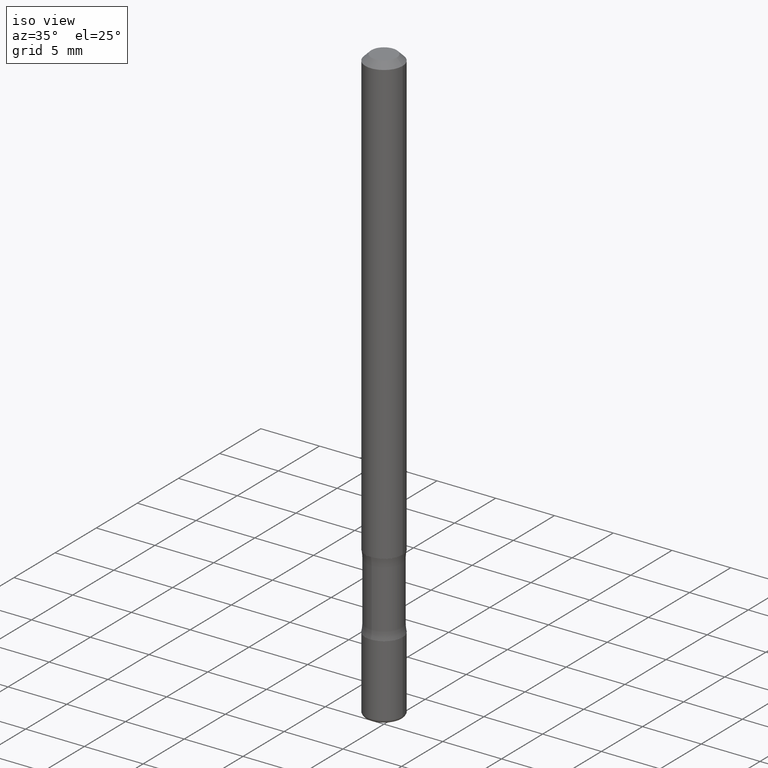
[diagram: clean part render]
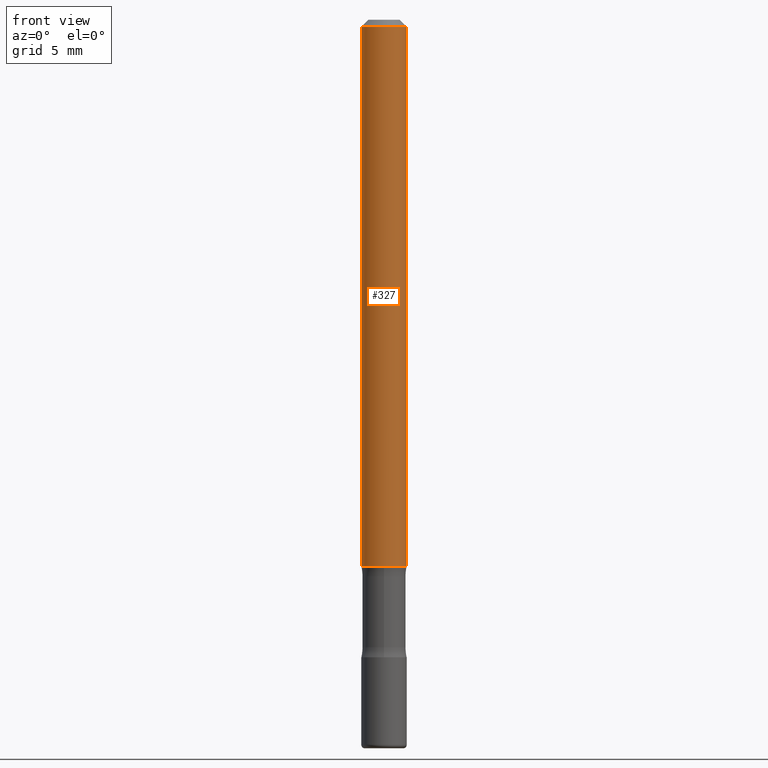
[diagram: tour spotlight — one face highlighted and labeled with its STEP entity id]
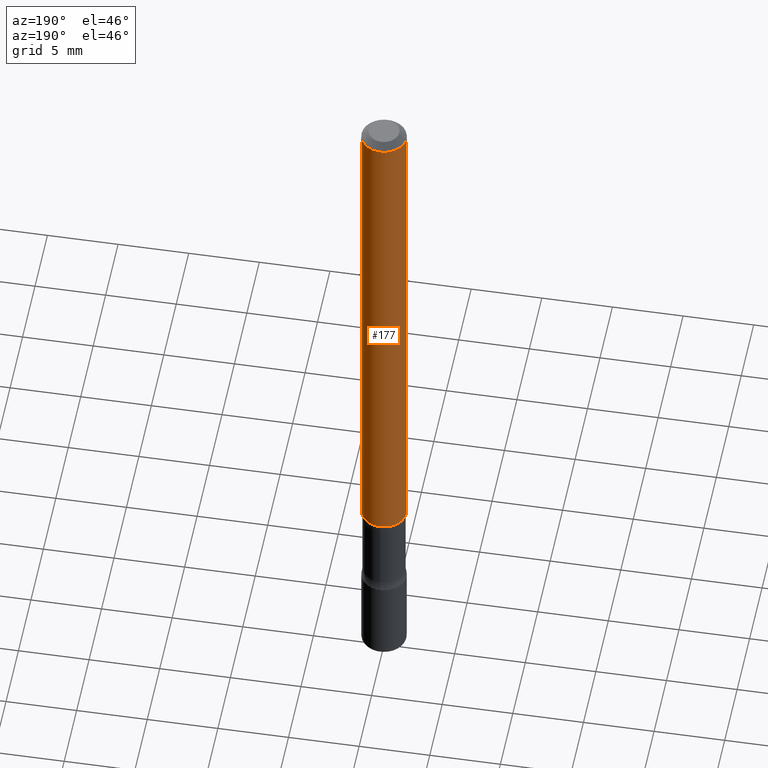
[diagram: tour spotlight — one face highlighted and labeled with its STEP entity id]
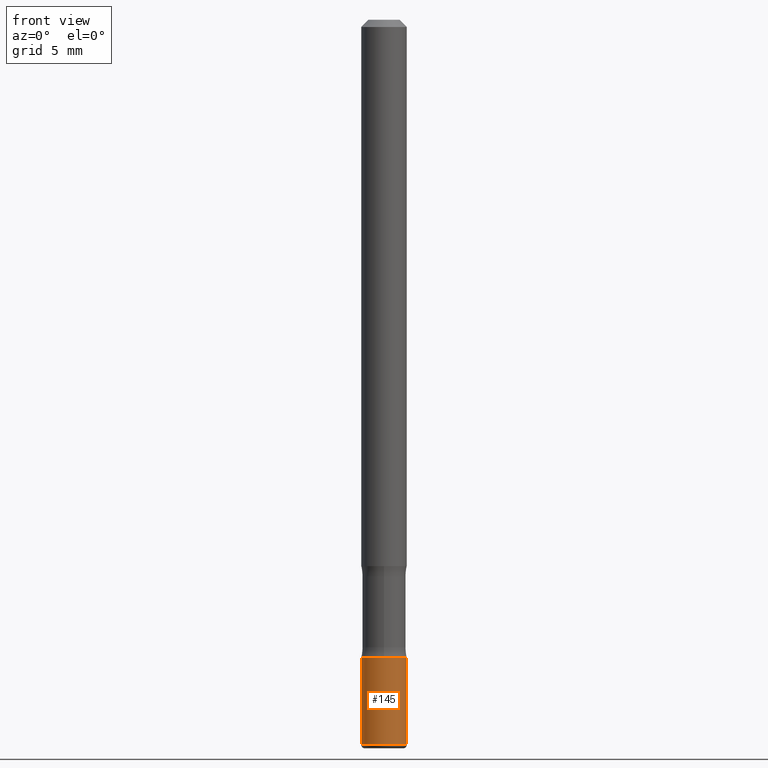
[diagram: tour spotlight — one face highlighted and labeled with its STEP entity id]
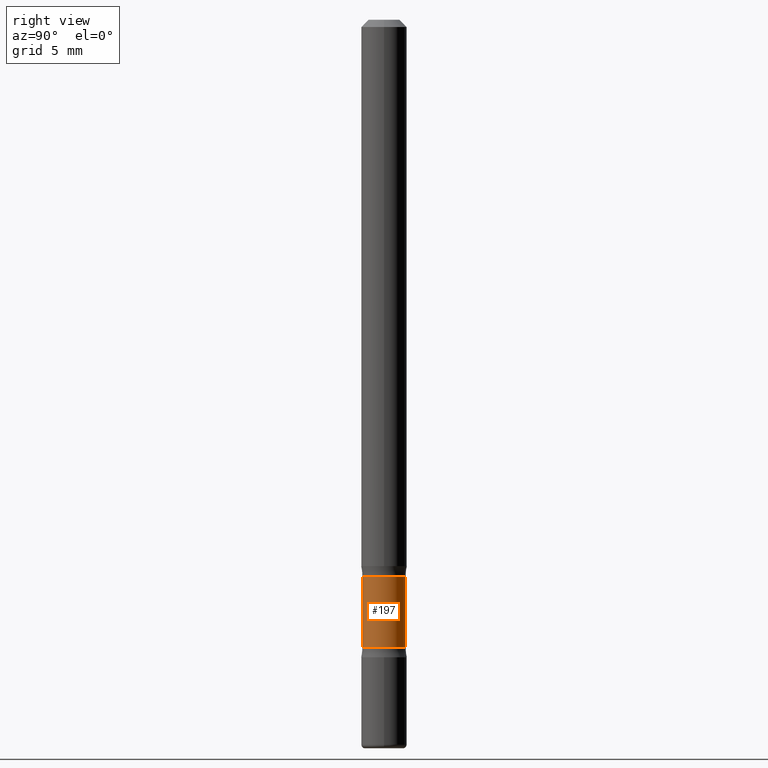
[diagram: tour spotlight — one face highlighted and labeled with its STEP entity id]
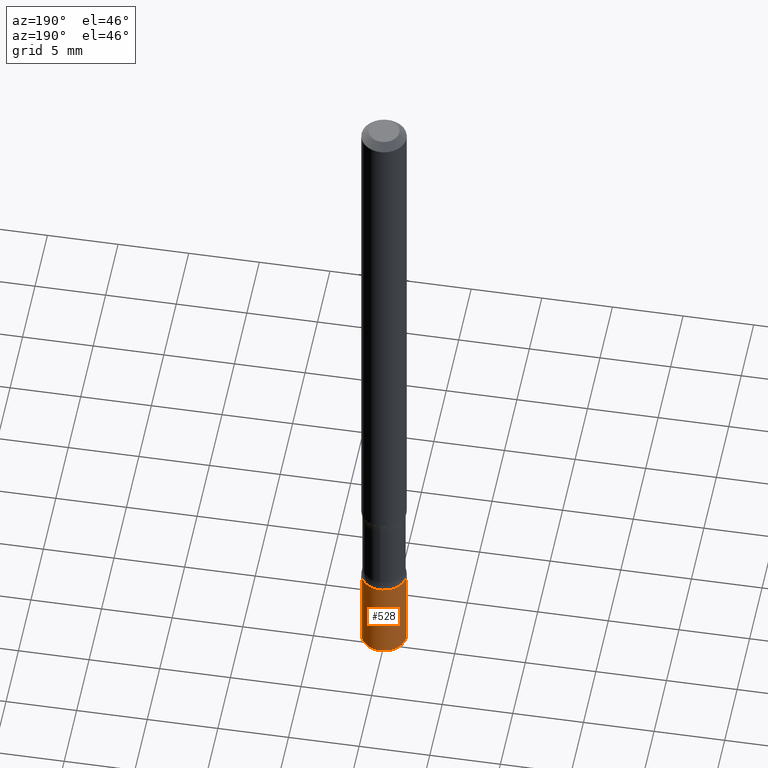
[diagram: tour spotlight — one face highlighted and labeled with its STEP entity id]
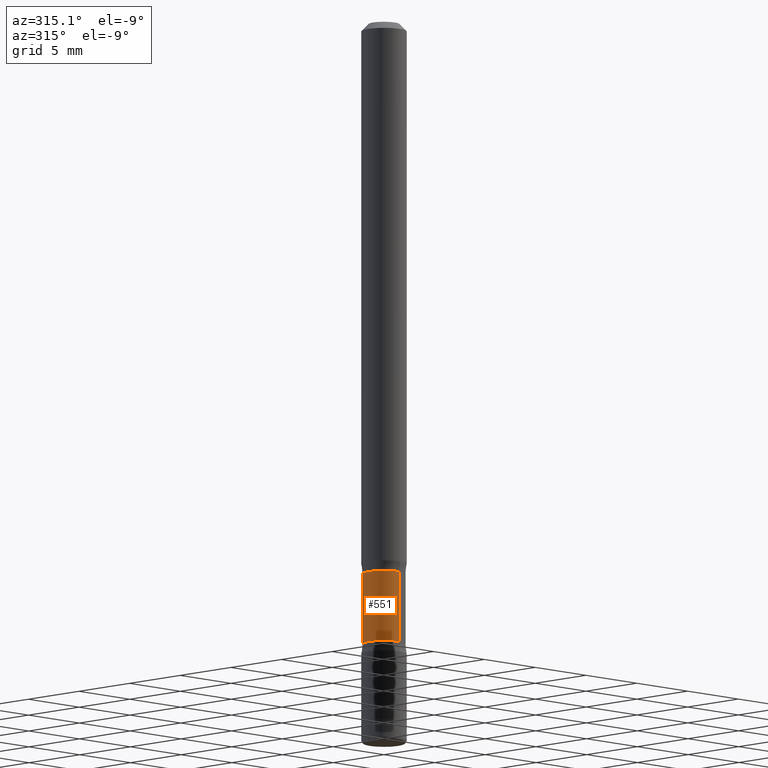
[diagram: tour spotlight — one face highlighted and labeled with its STEP entity id]
A machine part: a face-by-face anatomy tour. The part has 20 B-rep faces; the first image is the clean iso view, then the 6 largest visible faces are spotlighted one at a time (largest first), each with its STEP entity span.

Face 1 — front view, entity #327. In plain terms, the highlighted cylindrical surface (edge-blend (fillet) strip) has radius 1.5875 mm, axis along (-0, 0, 1).
Definition (entity closure, byte-faithful):
#3 = ORIENTED_EDGE ( 'NONE', *, *, #207, .F. ) ;
#22 = ORIENTED_EDGE ( 'NONE', *, *, #473, .T. ) ;
#26 = CIRCLE ( 'NONE', #239, 0.06250000000000056899 ) ;
#32 = DIRECTION ( 'NONE',  ( 1.000000000000000000, -6.982962677686265922E-15, 4.876176775795935793E-29 ) ) ;
#33 = VERTEX_POINT ( 'NONE', #154 ) ;
#47 = DIRECTION ( 'NONE',  ( 1.000000000000000000, -6.982962677686270655E-15, 0.000000000000000000 ) ) ;
#56 = AXIS2_PLACEMENT_3D ( 'NONE', #525, #479, #32 ) ;
#59 = LINE ( 'NONE', #269, #149 ) ;
#77 = CARTESIAN_POINT ( 'NONE',  ( -0.06250000000000056899, 3.666055405785322169E-16, -0.02000000000000013572 ) ) ;
#90 = CARTESIAN_POINT ( 'NONE',  ( -0.06250000000000073552, 4.440892098500678424E-16, -3.074334431409351847E-30 ) ) ;
#126 = CARTESIAN_POINT ( 'NONE',  ( 0.06250000000000090206, -5.673657175620112213E-15, -1.499999999999998668 ) ) ;
#127 = DIRECTION ( 'NONE',  ( -2.445468806185136597E-29, 3.491481338843145583E-15, 1.000000000000000000 ) ) ;
#128 = VECTOR ( 'NONE', #445, 39.37007874015748143 ) ;
#139 = DIRECTION ( 'NONE',  ( 1.000000000000000000, -6.982962677686265922E-15, 0.000000000000000000 ) ) ;
#148 = FACE_OUTER_BOUND ( 'NONE', #549, .T. ) ;
#149 = VECTOR ( 'NONE', #406, 39.37007874015748143 ) ;
#154 = CARTESIAN_POINT ( 'NONE',  ( -0.06250000000000090206, -2.209436607670712344E-15, -1.499999999999998668 ) ) ;
#179 = CIRCLE ( 'NONE', #337, 0.06250000000000090206 ) ;
#183 = EDGE_CURVE ( 'NONE', #33, #245, #179, .T. ) ;
#195 = VERTEX_POINT ( 'NONE', #200 ) ;
#200 = CARTESIAN_POINT ( 'NONE',  ( 0.06250000000000056899, -4.986107516375879651E-16, -0.02000000000000013572 ) ) ;
#207 = EDGE_CURVE ( 'NONE', #33, #323, #355, .T. ) ;
#219 = DIRECTION ( 'NONE',  ( -2.445468806185136597E-29, 3.491481338843145583E-15, 1.000000000000000000 ) ) ;
#239 = AXIS2_PLACEMENT_3D ( 'NONE', #313, #219, #139 ) ;
#244 = EDGE_CURVE ( 'NONE', #323, #195, #26, .T. ) ;
#245 = VERTEX_POINT ( 'NONE', #126 ) ;
#269 = CARTESIAN_POINT ( 'NONE',  ( 0.06250000000000073552, -4.364351673553967477E-16, 3.047610484872495604E-30 ) ) ;
#313 = CARTESIAN_POINT ( 'NONE',  ( 4.890937612370306439E-31, -6.982962677686338448E-17, -0.02000000000000013572 ) ) ;
#323 = VERTEX_POINT ( 'NONE', #77 ) ;
#327 = ADVANCED_FACE ( 'NONE', ( #148 ), #519, .T. ) ;
#337 = AXIS2_PLACEMENT_3D ( 'NONE', #386, #127, #47 ) ;
#355 = LINE ( 'NONE', #90, #128 ) ;
#386 = CARTESIAN_POINT ( 'NONE',  ( 3.668203209277701532E-29, -5.237222008264713444E-15, -1.499999999999998668 ) ) ;
#406 = DIRECTION ( 'NONE',  ( -2.445468806185136877E-29, 3.491481338843145188E-15, 1.000000000000000000 ) ) ;
#445 = DIRECTION ( 'NONE',  ( -2.445468806185136877E-29, 3.491481338843145188E-15, 1.000000000000000000 ) ) ;
#467 = ORIENTED_EDGE ( 'NONE', *, *, #244, .F. ) ;
#473 = EDGE_CURVE ( 'NONE', #245, #195, #59, .T. ) ;
#479 = DIRECTION ( 'NONE',  ( -2.445468806185136597E-29, 3.491481338843145583E-15, 1.000000000000000000 ) ) ;
#486 = ORIENTED_EDGE ( 'NONE', *, *, #183, .T. ) ;
#519 = CYLINDRICAL_SURFACE ( 'NONE', #56, 0.06250000000000073552 ) ;
#525 = CARTESIAN_POINT ( 'NONE',  ( 0.000000000000000000, 0.000000000000000000, 0.000000000000000000 ) ) ;
#549 = EDGE_LOOP ( 'NONE', ( #3, #486, #22, #467 ) ) ;

Face 2 — auxiliary view, entity #177. In plain terms, the highlighted cylindrical surface (edge-blend (fillet) strip) has radius 1.5875 mm, axis along (-0, 0, 1).
Definition (entity closure, byte-faithful):
#33 = VERTEX_POINT ( 'NONE', #154 ) ;
#42 = CARTESIAN_POINT ( 'NONE',  ( 3.668203209277701532E-29, -5.237222008264713444E-15, -1.499999999999998668 ) ) ;
#59 = LINE ( 'NONE', #269, #149 ) ;
#77 = CARTESIAN_POINT ( 'NONE',  ( -0.06250000000000056899, 3.666055405785322169E-16, -0.02000000000000013572 ) ) ;
#90 = CARTESIAN_POINT ( 'NONE',  ( -0.06250000000000073552, 4.440892098500678424E-16, -3.074334431409351847E-30 ) ) ;
#102 = EDGE_CURVE ( 'NONE', #195, #323, #399, .T. ) ;
#122 = AXIS2_PLACEMENT_3D ( 'NONE', #283, #291, #511 ) ;
#126 = CARTESIAN_POINT ( 'NONE',  ( 0.06250000000000090206, -5.673657175620112213E-15, -1.499999999999998668 ) ) ;
#128 = VECTOR ( 'NONE', #445, 39.37007874015748143 ) ;
#138 = EDGE_CURVE ( 'NONE', #245, #33, #204, .T. ) ;
#144 = FACE_OUTER_BOUND ( 'NONE', #546, .T. ) ;
#149 = VECTOR ( 'NONE', #406, 39.37007874015748143 ) ;
#154 = CARTESIAN_POINT ( 'NONE',  ( -0.06250000000000090206, -2.209436607670712344E-15, -1.499999999999998668 ) ) ;
#158 = CYLINDRICAL_SURFACE ( 'NONE', #122, 0.06250000000000073552 ) ;
#177 = ADVANCED_FACE ( 'NONE', ( #144 ), #158, .T. ) ;
#195 = VERTEX_POINT ( 'NONE', #200 ) ;
#199 = ORIENTED_EDGE ( 'NONE', *, *, #473, .F. ) ;
#200 = CARTESIAN_POINT ( 'NONE',  ( 0.06250000000000056899, -4.986107516375879651E-16, -0.02000000000000013572 ) ) ;
#204 = CIRCLE ( 'NONE', #263, 0.06250000000000090206 ) ;
#207 = EDGE_CURVE ( 'NONE', #33, #323, #355, .T. ) ;
#209 = DIRECTION ( 'NONE',  ( -2.445468806185136597E-29, 3.491481338843145583E-15, 1.000000000000000000 ) ) ;
#245 = VERTEX_POINT ( 'NONE', #126 ) ;
#263 = AXIS2_PLACEMENT_3D ( 'NONE', #42, #209, #338 ) ;
#269 = CARTESIAN_POINT ( 'NONE',  ( 0.06250000000000073552, -4.364351673553967477E-16, 3.047610484872495604E-30 ) ) ;
#283 = CARTESIAN_POINT ( 'NONE',  ( 0.000000000000000000, 0.000000000000000000, 0.000000000000000000 ) ) ;
#291 = DIRECTION ( 'NONE',  ( -2.445468806185136597E-29, 3.491481338843145583E-15, 1.000000000000000000 ) ) ;
#299 = DIRECTION ( 'NONE',  ( -2.445468806185136597E-29, 3.491481338843145583E-15, 1.000000000000000000 ) ) ;
#301 = CARTESIAN_POINT ( 'NONE',  ( 4.890937612370306439E-31, -6.982962677686338448E-17, -0.02000000000000013572 ) ) ;
#323 = VERTEX_POINT ( 'NONE', #77 ) ;
#338 = DIRECTION ( 'NONE',  ( 1.000000000000000000, -6.982962677686270655E-15, 0.000000000000000000 ) ) ;
#355 = LINE ( 'NONE', #90, #128 ) ;
#399 = CIRCLE ( 'NONE', #531, 0.06250000000000056899 ) ;
#406 = DIRECTION ( 'NONE',  ( -2.445468806185136877E-29, 3.491481338843145188E-15, 1.000000000000000000 ) ) ;
#420 = ORIENTED_EDGE ( 'NONE', *, *, #102, .F. ) ;
#445 = DIRECTION ( 'NONE',  ( -2.445468806185136877E-29, 3.491481338843145188E-15, 1.000000000000000000 ) ) ;
#456 = DIRECTION ( 'NONE',  ( 1.000000000000000000, -6.982962677686265922E-15, 0.000000000000000000 ) ) ;
#466 = ORIENTED_EDGE ( 'NONE', *, *, #207, .T. ) ;
#473 = EDGE_CURVE ( 'NONE', #245, #195, #59, .T. ) ;
#507 = ORIENTED_EDGE ( 'NONE', *, *, #138, .T. ) ;
#511 = DIRECTION ( 'NONE',  ( 1.000000000000000000, -6.982962677686265922E-15, 4.876176775795935793E-29 ) ) ;
#531 = AXIS2_PLACEMENT_3D ( 'NONE', #301, #299, #456 ) ;
#546 = EDGE_LOOP ( 'NONE', ( #507, #466, #420, #199 ) ) ;

Face 3 — front view, entity #145. In plain terms, the highlighted cylindrical surface (edge-blend (fillet) strip) has radius 1.5875 mm, axis along (-0, 0, 1).
Definition (entity closure, byte-faithful):
#37 = AXIS2_PLACEMENT_3D ( 'NONE', #117, #529, #533 ) ;
#66 = EDGE_CURVE ( 'NONE', #418, #95, #99, .T. ) ;
#70 = CYLINDRICAL_SURFACE ( 'NONE', #409, 0.06250000000000076328 ) ;
#74 = CIRCLE ( 'NONE', #37, 0.06250000000000090206 ) ;
#95 = VERTEX_POINT ( 'NONE', #217 ) ;
#99 = CIRCLE ( 'NONE', #422, 0.06250000000000062450 ) ;
#117 = CARTESIAN_POINT ( 'NONE',  ( 4.866482924308417164E-29, -6.948047864297853205E-15, -1.989999999999998215 ) ) ;
#120 = ORIENTED_EDGE ( 'NONE', *, *, #66, .F. ) ;
#145 = ADVANCED_FACE ( 'NONE', ( #390 ), #70, .T. ) ;
#171 = DIRECTION ( 'NONE',  ( 1.000000000000000000, -6.982962677686266711E-15, 4.876176775795936353E-29 ) ) ;
#191 = DIRECTION ( 'NONE',  ( -2.445468806185136877E-29, 3.491481338843145188E-15, 1.000000000000000000 ) ) ;
#217 = CARTESIAN_POINT ( 'NONE',  ( 0.06250000000000062450, -6.546527510330897918E-15, -1.749999999999999112 ) ) ;
#241 = EDGE_LOOP ( 'NONE', ( #261, #375, #413, #120 ) ) ;
#246 = CARTESIAN_POINT ( 'NONE',  ( 0.06250000000000111022, -7.384483031653253552E-15, -1.989999999999998215 ) ) ;
#257 = DIRECTION ( 'NONE',  ( 1.000000000000000000, -6.982962677686271444E-15, 0.000000000000000000 ) ) ;
#261 = ORIENTED_EDGE ( 'NONE', *, *, #433, .F. ) ;
#277 = VERTEX_POINT ( 'NONE', #304 ) ;
#304 = CARTESIAN_POINT ( 'NONE',  ( -0.06250000000000111022, -6.503958654447783489E-15, -1.989999999999998215 ) ) ;
#320 = VERTEX_POINT ( 'NONE', #246 ) ;
#321 = CARTESIAN_POINT ( 'NONE',  ( -0.06250000000000076328, 4.440892098500680396E-16, -3.074334431409353598E-30 ) ) ;
#322 = VECTOR ( 'NONE', #191, 39.37007874015748143 ) ;
#330 = LINE ( 'NONE', #321, #351 ) ;
#347 = EDGE_CURVE ( 'NONE', #320, #95, #412, .T. ) ;
#351 = VECTOR ( 'NONE', #407, 39.37007874015748143 ) ;
#357 = DIRECTION ( 'NONE',  ( -2.445468806185136597E-29, 3.491481338843145583E-15, 1.000000000000000000 ) ) ;
#358 = EDGE_CURVE ( 'NONE', #277, #320, #74, .T. ) ;
#375 = ORIENTED_EDGE ( 'NONE', *, *, #358, .T. ) ;
#390 = FACE_OUTER_BOUND ( 'NONE', #241, .T. ) ;
#407 = DIRECTION ( 'NONE',  ( -2.445468806185136877E-29, 3.491481338843145188E-15, 1.000000000000000000 ) ) ;
#409 = AXIS2_PLACEMENT_3D ( 'NONE', #560, #499, #171 ) ;
#412 = LINE ( 'NONE', #417, #322 ) ;
#413 = ORIENTED_EDGE ( 'NONE', *, *, #347, .T. ) ;
#417 = CARTESIAN_POINT ( 'NONE',  ( 0.06250000000000076328, -4.364351673553969942E-16, 3.047610484872497355E-30 ) ) ;
#418 = VERTEX_POINT ( 'NONE', #437 ) ;
#422 = AXIS2_PLACEMENT_3D ( 'NONE', #470, #357, #257 ) ;
#433 = EDGE_CURVE ( 'NONE', #277, #418, #330, .T. ) ;
#437 = CARTESIAN_POINT ( 'NONE',  ( -0.06250000000000062450, -6.084980893786609222E-15, -1.749999999999999112 ) ) ;
#470 = CARTESIAN_POINT ( 'NONE',  ( 4.279570410823987363E-29, -6.110092342975501516E-15, -1.749999999999999112 ) ) ;
#499 = DIRECTION ( 'NONE',  ( -2.445468806185136597E-29, 3.491481338843145583E-15, 1.000000000000000000 ) ) ;
#529 = DIRECTION ( 'NONE',  ( -2.445468806185136597E-29, 3.491481338843145583E-15, 1.000000000000000000 ) ) ;
#533 = DIRECTION ( 'NONE',  ( 1.000000000000000000, -6.982962677686270655E-15, 0.000000000000000000 ) ) ;
#560 = CARTESIAN_POINT ( 'NONE',  ( 0.000000000000000000, 0.000000000000000000, 0.000000000000000000 ) ) ;

Face 4 — right view, entity #197. In plain terms, the highlighted cylindrical surface (edge-blend (fillet) strip) has radius 1.5081 mm, axis along (0, -0, -1).
Definition (entity closure, byte-faithful):
#5 = LINE ( 'NONE', #318, #350 ) ;
#16 = EDGE_LOOP ( 'NONE', ( #504, #509, #100, #167 ) ) ;
#69 = DIRECTION ( 'NONE',  ( 6.982962677686266711E-15, 1.000000000000000000, -4.601007147224070964E-15 ) ) ;
#78 = CARTESIAN_POINT ( 'NONE',  ( 4.479839360347238409E-29, -7.571678772842681008E-15, -1.999999999999998446 ) ) ;
#98 = DIRECTION ( 'NONE',  ( 8.010757980930134339E-30, -5.846345719468729014E-15, -1.000000000000000000 ) ) ;
#100 = ORIENTED_EDGE ( 'NONE', *, *, #210, .F. ) ;
#115 = DIRECTION ( 'NONE',  ( 8.010757980930134339E-30, -5.846345719468729014E-15, -1.000000000000000000 ) ) ;
#132 = CARTESIAN_POINT ( 'NONE',  ( 4.257320043835055680E-29, -5.947706538645865427E-15, -1.722224392445885321 ) ) ;
#141 = CARTESIAN_POINT ( 'NONE',  ( 4.146134089876645858E-16, 0.05937499999999210076, -1.999999999999998668 ) ) ;
#146 = CARTESIAN_POINT ( 'NONE',  ( -4.180615967391589820E-16, -0.05937500000000418832, -1.527775607554111792 ) ) ;
#147 = AXIS2_PLACEMENT_3D ( 'NONE', #78, #311, #520 ) ;
#166 = DIRECTION ( 'NONE',  ( 8.010757980930134339E-30, -5.846345719468729014E-15, -1.000000000000000000 ) ) ;
#167 = ORIENTED_EDGE ( 'NONE', *, *, #431, .F. ) ;
#168 = AXIS2_PLACEMENT_3D ( 'NONE', #498, #115, #69 ) ;
#178 = DIRECTION ( 'NONE',  ( 8.010757980930134339E-30, -5.846345719468729014E-15, -1.000000000000000000 ) ) ;
#185 = AXIS2_PLACEMENT_3D ( 'NONE', #132, #166, #441 ) ;
#197 = ADVANCED_FACE ( 'NONE', ( #475 ), #360, .T. ) ;
#205 = VECTOR ( 'NONE', #98, 39.37007874015748143 ) ;
#210 = EDGE_CURVE ( 'NONE', #515, #539, #483, .T. ) ;
#260 = LINE ( 'NONE', #141, #205 ) ;
#295 = VERTEX_POINT ( 'NONE', #146 ) ;
#300 = EDGE_CURVE ( 'NONE', #295, #539, #5, .T. ) ;
#309 = VERTEX_POINT ( 'NONE', #478 ) ;
#311 = DIRECTION ( 'NONE',  ( 8.010757980930134339E-30, -5.846345719468729014E-15, -1.000000000000000000 ) ) ;
#318 = CARTESIAN_POINT ( 'NONE',  ( -4.073420686176375718E-16, -0.05937500000000724837, -1.999999999999998002 ) ) ;
#350 = VECTOR ( 'NONE', #178, 39.37007874015748143 ) ;
#360 = CYLINDRICAL_SURFACE ( 'NONE', #147, 0.05937499999999967110 ) ;
#361 = CIRCLE ( 'NONE', #168, 0.05937499999999937272 ) ;
#373 = CARTESIAN_POINT ( 'NONE',  ( 4.146134089876643393E-16, 0.05937499999999401590, -1.722224392445885544 ) ) ;
#382 = EDGE_CURVE ( 'NONE', #309, #295, #361, .T. ) ;
#431 = EDGE_CURVE ( 'NONE', #309, #515, #260, .T. ) ;
#441 = DIRECTION ( 'NONE',  ( 6.982962677686265133E-15, 1.000000000000000000, -4.601007147224025211E-15 ) ) ;
#475 = FACE_OUTER_BOUND ( 'NONE', #16, .T. ) ;
#478 = CARTESIAN_POINT ( 'NONE',  ( 4.146134089876587187E-16, 0.05937499999999455713, -1.527775607554112458 ) ) ;
#483 = CIRCLE ( 'NONE', #185, 0.05937499999999996253 ) ;
#495 = CARTESIAN_POINT ( 'NONE',  ( -4.180615967391622360E-16, -0.05937500000000592304, -1.722224392445884877 ) ) ;
#498 = CARTESIAN_POINT ( 'NONE',  ( 4.101551828289662394E-29, -4.810891717437951800E-15, -1.527775607554112014 ) ) ;
#504 = ORIENTED_EDGE ( 'NONE', *, *, #382, .T. ) ;
#509 = ORIENTED_EDGE ( 'NONE', *, *, #300, .T. ) ;
#515 = VERTEX_POINT ( 'NONE', #373 ) ;
#520 = DIRECTION ( 'NONE',  ( 6.982962677686266711E-15, 1.000000000000000000, -4.601007147224048087E-15 ) ) ;
#539 = VERTEX_POINT ( 'NONE', #495 ) ;

Face 5 — auxiliary view, entity #528. In plain terms, the highlighted cylindrical surface (edge-blend (fillet) strip) has radius 1.5875 mm, axis along (-0, 0, 1).
Definition (entity closure, byte-faithful):
#2 = AXIS2_PLACEMENT_3D ( 'NONE', #503, #286, #391 ) ;
#41 = DIRECTION ( 'NONE',  ( -2.445468806185136597E-29, 3.491481338843145583E-15, 1.000000000000000000 ) ) ;
#80 = ORIENTED_EDGE ( 'NONE', *, *, #433, .T. ) ;
#95 = VERTEX_POINT ( 'NONE', #217 ) ;
#107 = DIRECTION ( 'NONE',  ( -2.445468806185136597E-29, 3.491481338843145583E-15, 1.000000000000000000 ) ) ;
#186 = CARTESIAN_POINT ( 'NONE',  ( 4.866482924308417164E-29, -6.948047864297853205E-15, -1.989999999999998215 ) ) ;
#191 = DIRECTION ( 'NONE',  ( -2.445468806185136877E-29, 3.491481338843145188E-15, 1.000000000000000000 ) ) ;
#217 = CARTESIAN_POINT ( 'NONE',  ( 0.06250000000000062450, -6.546527510330897918E-15, -1.749999999999999112 ) ) ;
#232 = FACE_OUTER_BOUND ( 'NONE', #372, .T. ) ;
#246 = CARTESIAN_POINT ( 'NONE',  ( 0.06250000000000111022, -7.384483031653253552E-15, -1.989999999999998215 ) ) ;
#271 = DIRECTION ( 'NONE',  ( 1.000000000000000000, -6.982962677686266711E-15, 4.876176775795936353E-29 ) ) ;
#277 = VERTEX_POINT ( 'NONE', #304 ) ;
#285 = ORIENTED_EDGE ( 'NONE', *, *, #336, .T. ) ;
#286 = DIRECTION ( 'NONE',  ( -2.445468806185136597E-29, 3.491481338843145583E-15, 1.000000000000000000 ) ) ;
#304 = CARTESIAN_POINT ( 'NONE',  ( -0.06250000000000111022, -6.503958654447783489E-15, -1.989999999999998215 ) ) ;
#317 = ORIENTED_EDGE ( 'NONE', *, *, #347, .F. ) ;
#320 = VERTEX_POINT ( 'NONE', #246 ) ;
#321 = CARTESIAN_POINT ( 'NONE',  ( -0.06250000000000076328, 4.440892098500680396E-16, -3.074334431409353598E-30 ) ) ;
#322 = VECTOR ( 'NONE', #191, 39.37007874015748143 ) ;
#330 = LINE ( 'NONE', #321, #351 ) ;
#336 = EDGE_CURVE ( 'NONE', #320, #277, #512, .T. ) ;
#347 = EDGE_CURVE ( 'NONE', #320, #95, #412, .T. ) ;
#351 = VECTOR ( 'NONE', #407, 39.37007874015748143 ) ;
#370 = CIRCLE ( 'NONE', #2, 0.06250000000000062450 ) ;
#372 = EDGE_LOOP ( 'NONE', ( #285, #80, #496, #317 ) ) ;
#379 = CYLINDRICAL_SURFACE ( 'NONE', #462, 0.06250000000000076328 ) ;
#391 = DIRECTION ( 'NONE',  ( 1.000000000000000000, -6.982962677686271444E-15, 0.000000000000000000 ) ) ;
#407 = DIRECTION ( 'NONE',  ( -2.445468806185136877E-29, 3.491481338843145188E-15, 1.000000000000000000 ) ) ;
#412 = LINE ( 'NONE', #417, #322 ) ;
#417 = CARTESIAN_POINT ( 'NONE',  ( 0.06250000000000076328, -4.364351673553969942E-16, 3.047610484872497355E-30 ) ) ;
#418 = VERTEX_POINT ( 'NONE', #437 ) ;
#433 = EDGE_CURVE ( 'NONE', #277, #418, #330, .T. ) ;
#437 = CARTESIAN_POINT ( 'NONE',  ( -0.06250000000000062450, -6.084980893786609222E-15, -1.749999999999999112 ) ) ;
#459 = EDGE_CURVE ( 'NONE', #95, #418, #370, .T. ) ;
#460 = AXIS2_PLACEMENT_3D ( 'NONE', #186, #41, #559 ) ;
#462 = AXIS2_PLACEMENT_3D ( 'NONE', #490, #107, #271 ) ;
#490 = CARTESIAN_POINT ( 'NONE',  ( 0.000000000000000000, 0.000000000000000000, 0.000000000000000000 ) ) ;
#496 = ORIENTED_EDGE ( 'NONE', *, *, #459, .F. ) ;
#503 = CARTESIAN_POINT ( 'NONE',  ( 4.279570410823987363E-29, -6.110092342975501516E-15, -1.749999999999999112 ) ) ;
#512 = CIRCLE ( 'NONE', #460, 0.06250000000000090206 ) ;
#528 = ADVANCED_FACE ( 'NONE', ( #232 ), #379, .T. ) ;
#559 = DIRECTION ( 'NONE',  ( 1.000000000000000000, -6.982962677686270655E-15, 0.000000000000000000 ) ) ;

Face 6 — auxiliary view, entity #551. In plain terms, the highlighted cylindrical surface (edge-blend (fillet) strip) has radius 1.5081 mm, axis along (0, -0, -1).
Definition (entity closure, byte-faithful):
#5 = LINE ( 'NONE', #318, #350 ) ;
#9 = AXIS2_PLACEMENT_3D ( 'NONE', #404, #491, #235 ) ;
#19 = ORIENTED_EDGE ( 'NONE', *, *, #431, .T. ) ;
#23 = CYLINDRICAL_SURFACE ( 'NONE', #254, 0.05937499999999967110 ) ;
#68 = FACE_OUTER_BOUND ( 'NONE', #384, .T. ) ;
#93 = CARTESIAN_POINT ( 'NONE',  ( 4.101551828289662394E-29, -4.810891717437951800E-15, -1.527775607554112014 ) ) ;
#98 = DIRECTION ( 'NONE',  ( 8.010757980930134339E-30, -5.846345719468729014E-15, -1.000000000000000000 ) ) ;
#106 = ORIENTED_EDGE ( 'NONE', *, *, #446, .F. ) ;
#141 = CARTESIAN_POINT ( 'NONE',  ( 4.146134089876645858E-16, 0.05937499999999210076, -1.999999999999998668 ) ) ;
#146 = CARTESIAN_POINT ( 'NONE',  ( -4.180615967391589820E-16, -0.05937500000000418832, -1.527775607554111792 ) ) ;
#178 = DIRECTION ( 'NONE',  ( 8.010757980930134339E-30, -5.846345719468729014E-15, -1.000000000000000000 ) ) ;
#205 = VECTOR ( 'NONE', #98, 39.37007874015748143 ) ;
#215 = AXIS2_PLACEMENT_3D ( 'NONE', #93, #262, #400 ) ;
#235 = DIRECTION ( 'NONE',  ( 6.982962677686265133E-15, 1.000000000000000000, -4.601007147224025211E-15 ) ) ;
#250 = CARTESIAN_POINT ( 'NONE',  ( 4.479839360347238409E-29, -7.571678772842681008E-15, -1.999999999999998446 ) ) ;
#251 = EDGE_CURVE ( 'NONE', #295, #309, #556, .T. ) ;
#254 = AXIS2_PLACEMENT_3D ( 'NONE', #250, #505, #302 ) ;
#260 = LINE ( 'NONE', #141, #205 ) ;
#262 = DIRECTION ( 'NONE',  ( 8.010757980930134339E-30, -5.846345719468729014E-15, -1.000000000000000000 ) ) ;
#288 = ORIENTED_EDGE ( 'NONE', *, *, #251, .T. ) ;
#295 = VERTEX_POINT ( 'NONE', #146 ) ;
#300 = EDGE_CURVE ( 'NONE', #295, #539, #5, .T. ) ;
#302 = DIRECTION ( 'NONE',  ( 6.982962677686266711E-15, 1.000000000000000000, -4.601007147224048087E-15 ) ) ;
#309 = VERTEX_POINT ( 'NONE', #478 ) ;
#318 = CARTESIAN_POINT ( 'NONE',  ( -4.073420686176375718E-16, -0.05937500000000724837, -1.999999999999998002 ) ) ;
#350 = VECTOR ( 'NONE', #178, 39.37007874015748143 ) ;
#373 = CARTESIAN_POINT ( 'NONE',  ( 4.146134089876643393E-16, 0.05937499999999401590, -1.722224392445885544 ) ) ;
#383 = ORIENTED_EDGE ( 'NONE', *, *, #300, .F. ) ;
#384 = EDGE_LOOP ( 'NONE', ( #383, #288, #19, #106 ) ) ;
#400 = DIRECTION ( 'NONE',  ( 6.982962677686266711E-15, 1.000000000000000000, -4.601007147224070964E-15 ) ) ;
#404 = CARTESIAN_POINT ( 'NONE',  ( 4.257320043835055680E-29, -5.947706538645865427E-15, -1.722224392445885321 ) ) ;
#431 = EDGE_CURVE ( 'NONE', #309, #515, #260, .T. ) ;
#446 = EDGE_CURVE ( 'NONE', #539, #515, #532, .T. ) ;
#478 = CARTESIAN_POINT ( 'NONE',  ( 4.146134089876587187E-16, 0.05937499999999455713, -1.527775607554112458 ) ) ;
#491 = DIRECTION ( 'NONE',  ( 8.010757980930134339E-30, -5.846345719468729014E-15, -1.000000000000000000 ) ) ;
#495 = CARTESIAN_POINT ( 'NONE',  ( -4.180615967391622360E-16, -0.05937500000000592304, -1.722224392445884877 ) ) ;
#505 = DIRECTION ( 'NONE',  ( 8.010757980930134339E-30, -5.846345719468729014E-15, -1.000000000000000000 ) ) ;
#515 = VERTEX_POINT ( 'NONE', #373 ) ;
#532 = CIRCLE ( 'NONE', #9, 0.05937499999999996253 ) ;
#539 = VERTEX_POINT ( 'NONE', #495 ) ;
#551 = ADVANCED_FACE ( 'NONE', ( #68 ), #23, .T. ) ;
#556 = CIRCLE ( 'NONE', #215, 0.05937499999999937272 ) ;